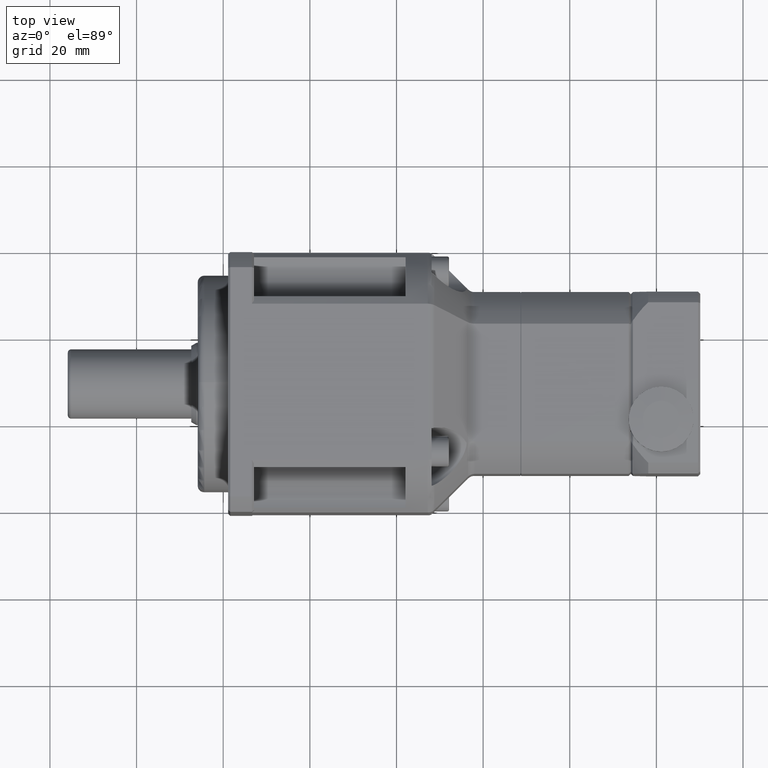
[diagram: clean part render]
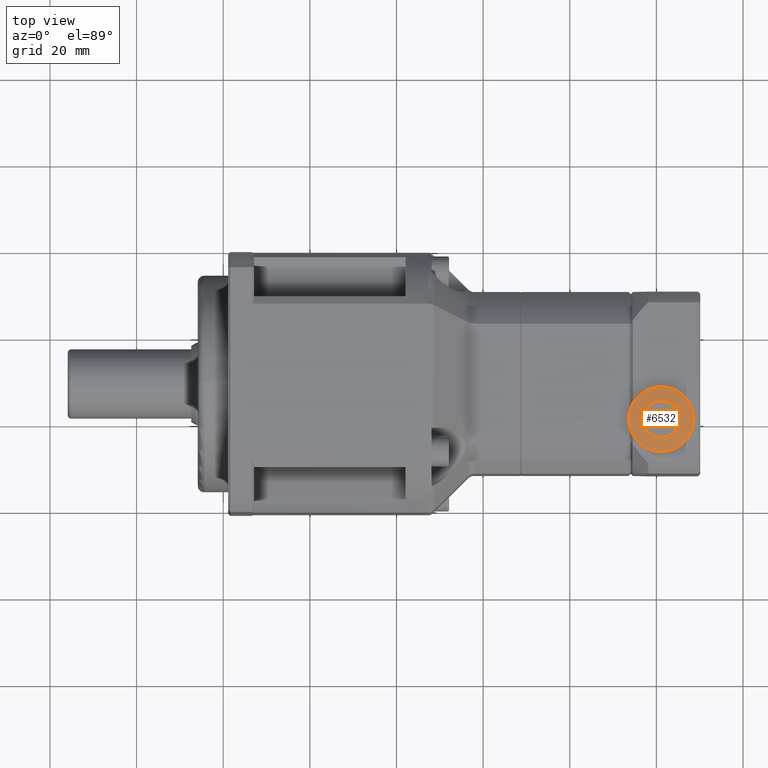
[diagram: same view with one face highlighted and labeled with its STEP entity id]
A machine part, top view. The second image highlights one B-rep face of the part: STEP entity #6532.
In plain terms, the highlighted conical surface has half-angle 84.726 deg.
Its self-contained STEP definition (entity closure, byte-faithful):
#918=CONICAL_SURFACE('',#7101,5.875,84.7261040426483);
#1446=FACE_BOUND('',#2213,.T.);
#1714=FACE_OUTER_BOUND('',#2212,.T.);
#2212=EDGE_LOOP('',(#5007));
#2213=EDGE_LOOP('',(#5008));
#2742=CIRCLE('',#7100,4.25);
#2743=CIRCLE('',#7102,7.5);
#3165=VERTEX_POINT('',#10316);
#3166=VERTEX_POINT('',#10319);
#3859=EDGE_CURVE('',#3165,#3165,#2742,.T.);
#3860=EDGE_CURVE('',#3166,#3166,#2743,.T.);
#5007=ORIENTED_EDGE('',*,*,#3859,.T.);
#5008=ORIENTED_EDGE('',*,*,#3860,.F.);
#6532=ADVANCED_FACE('',(#1714,#1446),#918,.T.);
#7100=AXIS2_PLACEMENT_3D('',#10317,#8242,#8243);
#7101=AXIS2_PLACEMENT_3D('',#10318,#8244,#8245);
#7102=AXIS2_PLACEMENT_3D('',#10320,#8246,#8247);
#8242=DIRECTION('center_axis',(2.31276918266198E-15,2.40416152594424E-15,
-1.));
#8243=DIRECTION('ref_axis',(-1.,-2.58166811418372E-15,-2.31276918266198E-15));
#8244=DIRECTION('center_axis',(2.31276918266198E-15,2.40416152594424E-15,
-1.));
#8245=DIRECTION('ref_axis',(-2.58166811418372E-15,1.,2.40923332532946E-15));
#8246=DIRECTION('center_axis',(2.31276918266198E-15,2.40416152594424E-15,
-1.));
#8247=DIRECTION('ref_axis',(-1.,-2.58166811418372E-15,-2.31276918266198E-15));
#10316=CARTESIAN_POINT('',(61.1218498129889,-54.9353481373328,35.0410286731231));
#10317=CARTESIAN_POINT('Origin',(61.1218498129889,-59.1853481373328,35.0410286731231));
#10318=CARTESIAN_POINT('Origin',(61.1218498129889,-59.1853481373328,34.8910286731231));
#10319=CARTESIAN_POINT('',(61.1218498129889,-51.6853481373328,34.7410286731231));
#10320=CARTESIAN_POINT('Origin',(61.1218498129889,-59.1853481373328,34.7410286731231));